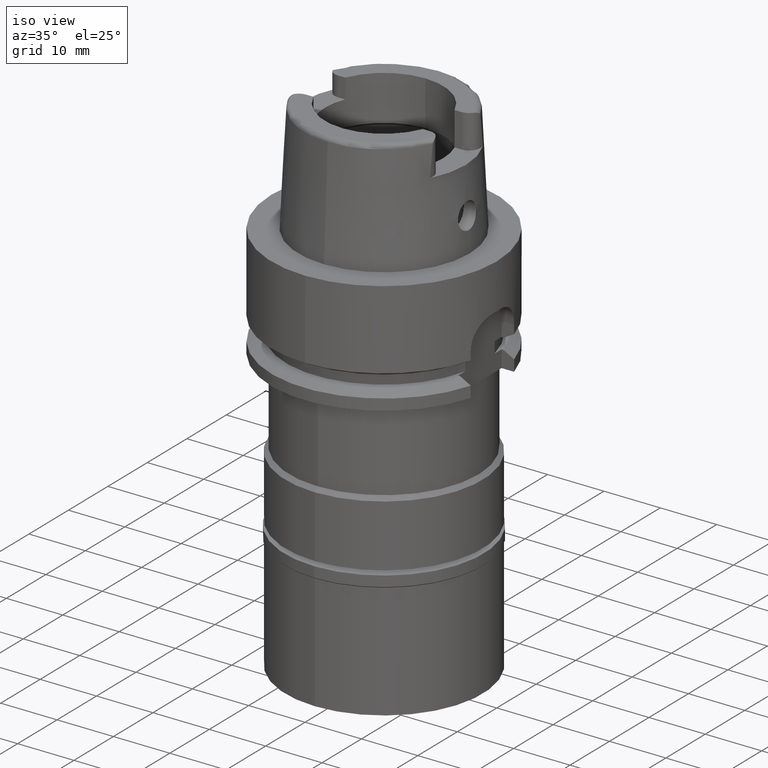
[diagram: clean part render]
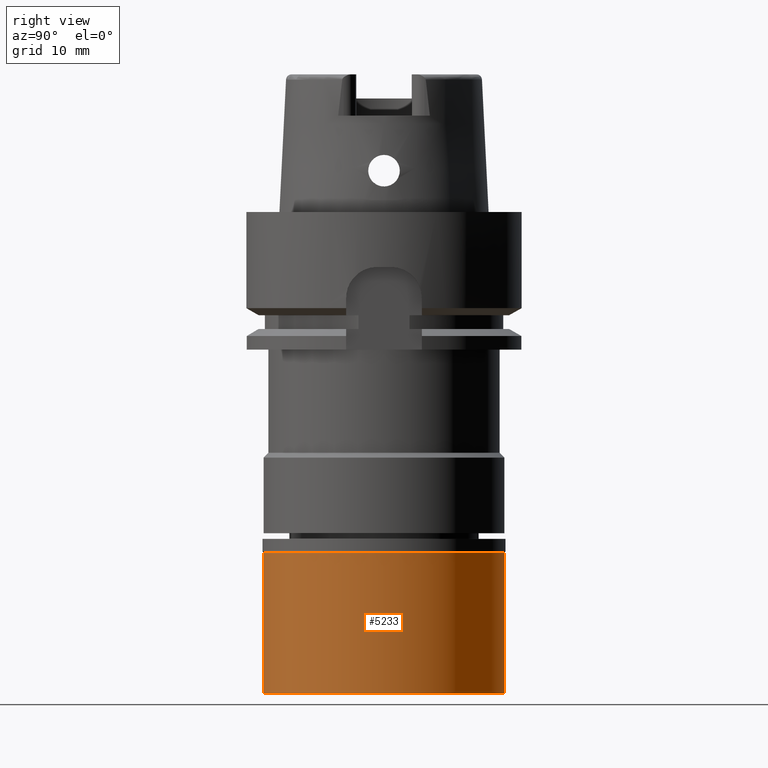
[diagram: tour spotlight — one face highlighted and labeled with its STEP entity id]
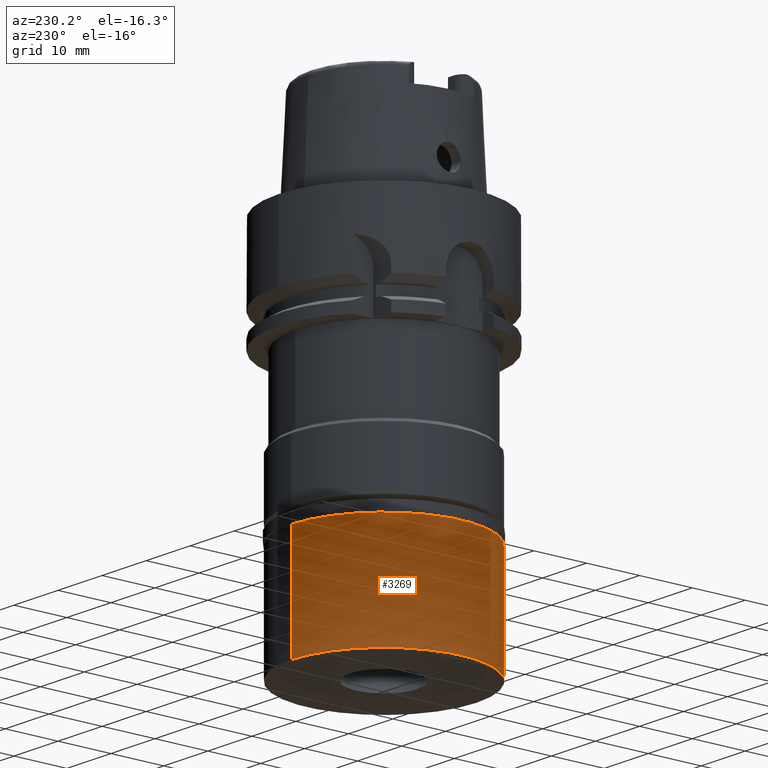
[diagram: tour spotlight — one face highlighted and labeled with its STEP entity id]
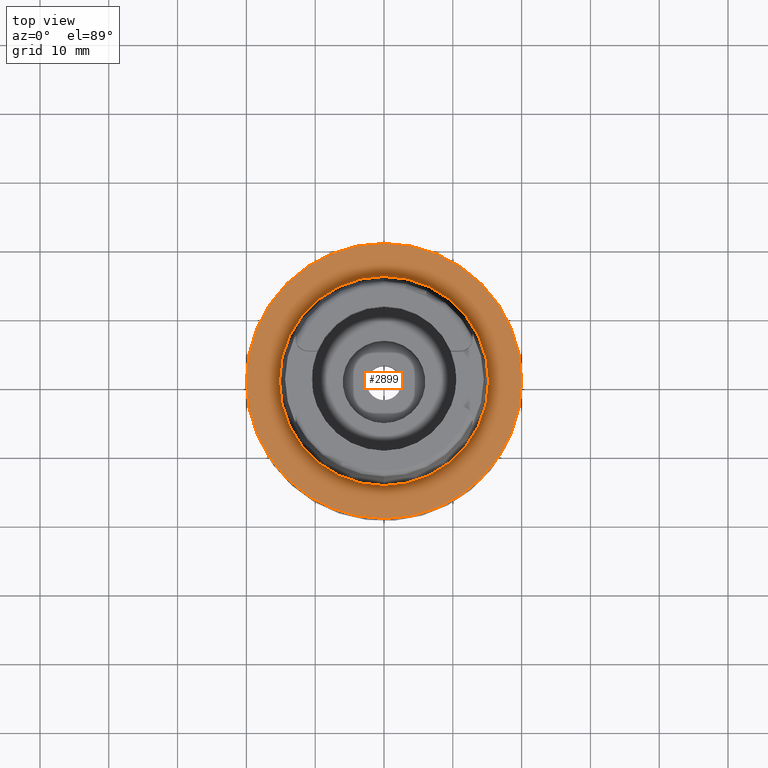
[diagram: tour spotlight — one face highlighted and labeled with its STEP entity id]
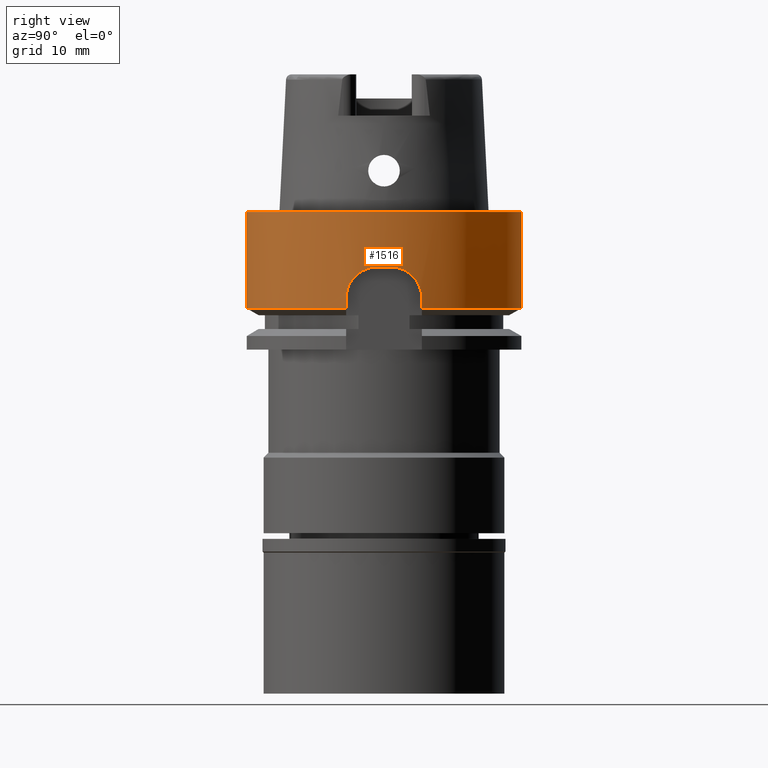
[diagram: tour spotlight — one face highlighted and labeled with its STEP entity id]
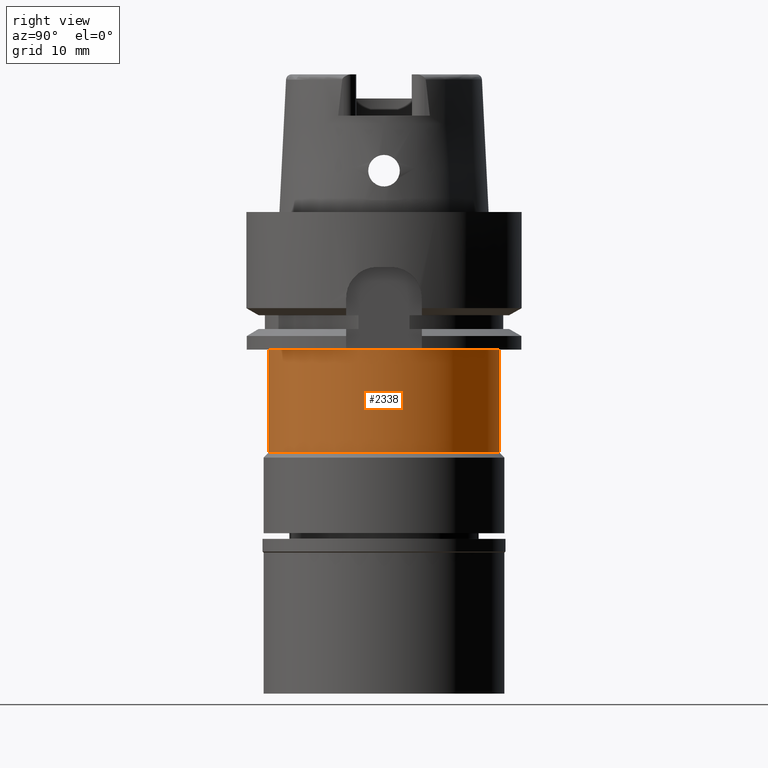
[diagram: tour spotlight — one face highlighted and labeled with its STEP entity id]
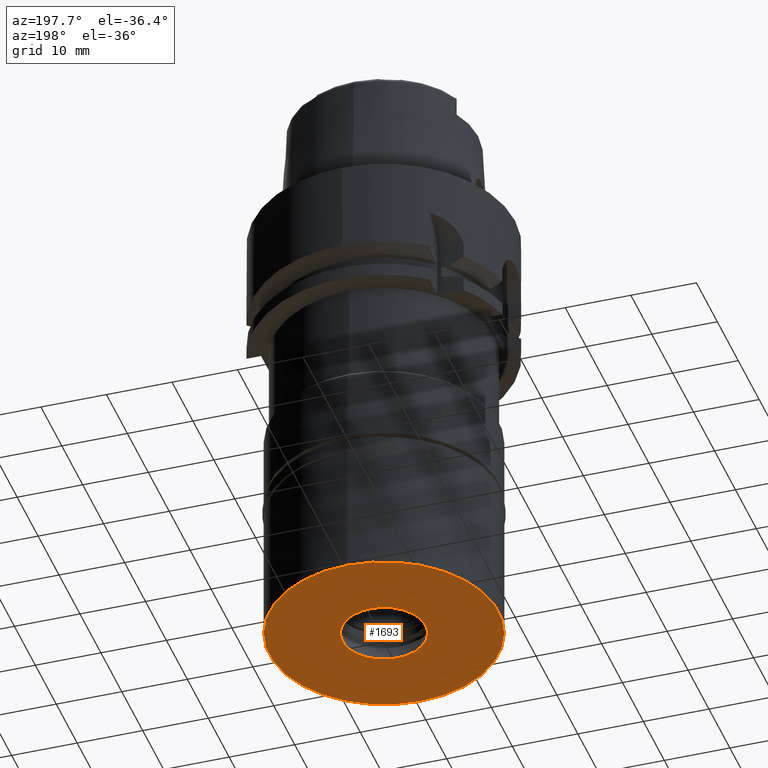
[diagram: tour spotlight — one face highlighted and labeled with its STEP entity id]
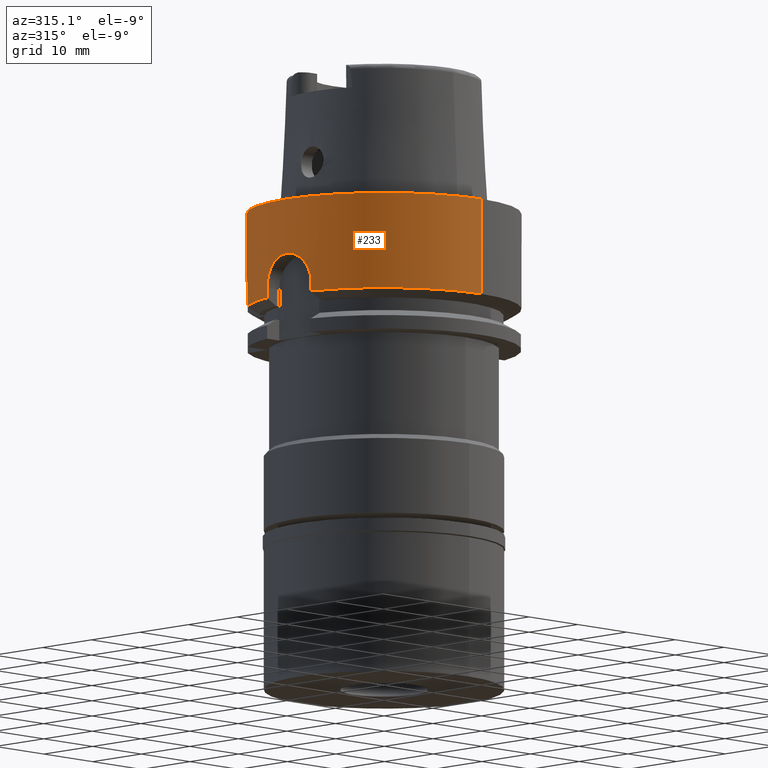
[diagram: tour spotlight — one face highlighted and labeled with its STEP entity id]
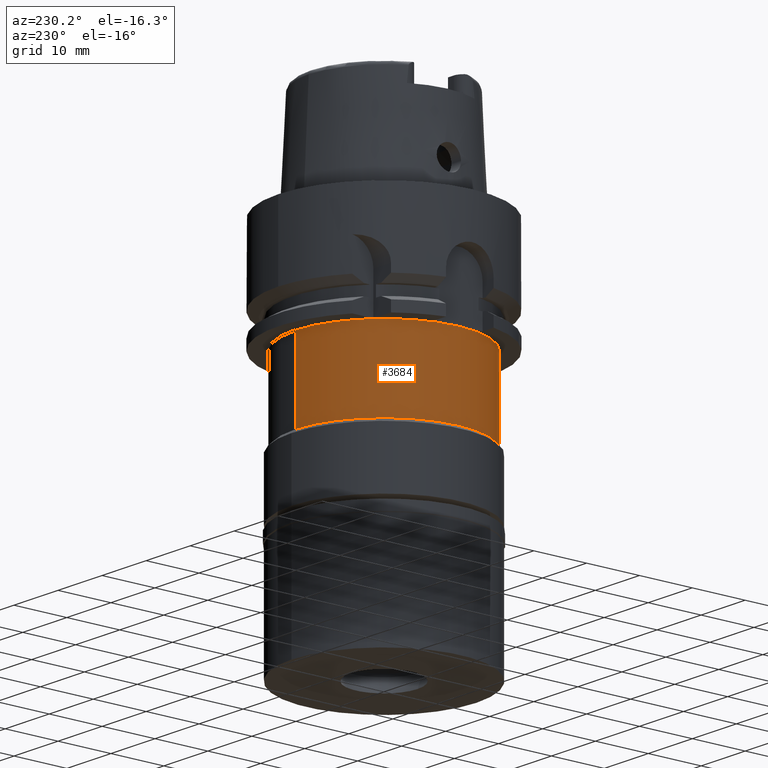
[diagram: tour spotlight — one face highlighted and labeled with its STEP entity id]
A machine part: a face-by-face anatomy tour. The part has 129 B-rep faces; the first image is the clean iso view, then the 8 largest visible faces are spotlighted one at a time (largest first), each with its STEP entity span.

Face 1 — right view, entity #5233. In plain terms, the highlighted cylindrical surface (partial cylindrical patch) has radius 17.5 mm, axis along (0, 0, -1).
Definition (entity closure, byte-faithful):
#129 = VERTEX_POINT ( 'NONE', #948 ) ;
#159 = DIRECTION ( 'NONE',  ( 0.0000000000000000000, 0.0000000000000000000, -1.000000000000000000 ) ) ;
#160 = ORIENTED_EDGE ( 'NONE', *, *, #3111, .F. ) ;
#382 = EDGE_LOOP ( 'NONE', ( #2747, #5348, #1553, #160 ) ) ;
#396 = LINE ( 'NONE', #5217, #630 ) ;
#543 = CIRCLE ( 'NONE', #721, 17.50000000000000000 ) ;
#630 = VECTOR ( 'NONE', #3501, 1000.000000000000000 ) ;
#721 = AXIS2_PLACEMENT_3D ( 'NONE', #5004, #3790, #2504 ) ;
#793 = VERTEX_POINT ( 'NONE', #4098 ) ;
#948 = CARTESIAN_POINT ( 'NONE',  ( 0.0000000000000000000, 17.50000000000000000, -2.000000000000000000 ) ) ;
#1062 = CARTESIAN_POINT ( 'NONE',  ( 0.0000000000000000000, 0.0000000000000000000, -2.000000000000000000 ) ) ;
#1279 = EDGE_CURVE ( 'NONE', #1649, #3152, #2829, .T. ) ;
#1418 = AXIS2_PLACEMENT_3D ( 'NONE', #1062, #5204, #3568 ) ;
#1436 = DIRECTION ( 'NONE',  ( 0.0000000000000000000, -1.000000000000000000, 0.0000000000000000000 ) ) ;
#1444 = CARTESIAN_POINT ( 'NONE',  ( 0.0000000000000000000, -17.50000000000000000, -2.000000000000000000 ) ) ;
#1553 = ORIENTED_EDGE ( 'NONE', *, *, #3092, .T. ) ;
#1649 = VERTEX_POINT ( 'NONE', #1444 ) ;
#2039 = EDGE_CURVE ( 'NONE', #129, #1649, #4844, .T. ) ;
#2386 = DIRECTION ( 'NONE',  ( 0.0000000000000000000, 0.0000000000000000000, -1.000000000000000000 ) ) ;
#2504 = DIRECTION ( 'NONE',  ( 0.0000000000000000000, -1.000000000000000000, 0.0000000000000000000 ) ) ;
#2747 = ORIENTED_EDGE ( 'NONE', *, *, #2039, .T. ) ;
#2829 = LINE ( 'NONE', #3701, #3510 ) ;
#3092 = EDGE_CURVE ( 'NONE', #3152, #793, #543, .T. ) ;
#3111 = EDGE_CURVE ( 'NONE', #129, #793, #396, .T. ) ;
#3152 = VERTEX_POINT ( 'NONE', #4307 ) ;
#3411 = AXIS2_PLACEMENT_3D ( 'NONE', #5125, #159, #1436 ) ;
#3432 = CYLINDRICAL_SURFACE ( 'NONE', #3411, 17.50000000000000000 ) ;
#3501 = DIRECTION ( 'NONE',  ( 0.0000000000000000000, 0.0000000000000000000, -1.000000000000000000 ) ) ;
#3510 = VECTOR ( 'NONE', #2386, 1000.000000000000000 ) ;
#3568 = DIRECTION ( 'NONE',  ( 0.0000000000000000000, 1.000000000000000000, 0.0000000000000000000 ) ) ;
#3701 = CARTESIAN_POINT ( 'NONE',  ( 0.0000000000000000000, -17.50000000000000000, -2.000000000000000000 ) ) ;
#3790 = DIRECTION ( 'NONE',  ( 0.0000000000000000000, 0.0000000000000000000, 1.000000000000000000 ) ) ;
#3826 = FACE_OUTER_BOUND ( 'NONE', #382, .T. ) ;
#4098 = CARTESIAN_POINT ( 'NONE',  ( 0.0000000000000000000, 17.50000000000000000, -22.50000000000000000 ) ) ;
#4307 = CARTESIAN_POINT ( 'NONE',  ( 0.0000000000000000000, -17.50000000000000000, -22.50000000000000000 ) ) ;
#4844 = CIRCLE ( 'NONE', #1418, 17.50000000000000000 ) ;
#5004 = CARTESIAN_POINT ( 'NONE',  ( 0.0000000000000000000, 0.0000000000000000000, -22.50000000000000000 ) ) ;
#5125 = CARTESIAN_POINT ( 'NONE',  ( 0.0000000000000000000, 0.0000000000000000000, 0.0000000000000000000 ) ) ;
#5204 = DIRECTION ( 'NONE',  ( 0.0000000000000000000, 0.0000000000000000000, -1.000000000000000000 ) ) ;
#5217 = CARTESIAN_POINT ( 'NONE',  ( 0.0000000000000000000, 17.50000000000000000, -2.000000000000000000 ) ) ;
#5233 = ADVANCED_FACE ( 'NONE', ( #3826 ), #3432, .T. ) ;
#5348 = ORIENTED_EDGE ( 'NONE', *, *, #1279, .T. ) ;

Face 2 — auxiliary view, entity #3269. In plain terms, the highlighted cylindrical surface (partial cylindrical patch) has radius 17.5 mm, axis along (0, 0, -1).
Definition (entity closure, byte-faithful):
#129 = VERTEX_POINT ( 'NONE', #948 ) ;
#366 = AXIS2_PLACEMENT_3D ( 'NONE', #1891, #3922, #3042 ) ;
#396 = LINE ( 'NONE', #5217, #630 ) ;
#472 = ORIENTED_EDGE ( 'NONE', *, *, #1349, .T. ) ;
#630 = VECTOR ( 'NONE', #3501, 1000.000000000000000 ) ;
#763 = ORIENTED_EDGE ( 'NONE', *, *, #2149, .T. ) ;
#793 = VERTEX_POINT ( 'NONE', #4098 ) ;
#877 = ORIENTED_EDGE ( 'NONE', *, *, #1279, .F. ) ;
#908 = CARTESIAN_POINT ( 'NONE',  ( 0.0000000000000000000, 0.0000000000000000000, -22.50000000000000000 ) ) ;
#948 = CARTESIAN_POINT ( 'NONE',  ( 0.0000000000000000000, 17.50000000000000000, -2.000000000000000000 ) ) ;
#1176 = CARTESIAN_POINT ( 'NONE',  ( 0.0000000000000000000, 0.0000000000000000000, -2.000000000000000000 ) ) ;
#1279 = EDGE_CURVE ( 'NONE', #1649, #3152, #2829, .T. ) ;
#1349 = EDGE_CURVE ( 'NONE', #793, #3152, #2819, .T. ) ;
#1360 = CYLINDRICAL_SURFACE ( 'NONE', #366, 17.50000000000000000 ) ;
#1444 = CARTESIAN_POINT ( 'NONE',  ( 0.0000000000000000000, -17.50000000000000000, -2.000000000000000000 ) ) ;
#1649 = VERTEX_POINT ( 'NONE', #1444 ) ;
#1891 = CARTESIAN_POINT ( 'NONE',  ( 0.0000000000000000000, 0.0000000000000000000, 0.0000000000000000000 ) ) ;
#1986 = DIRECTION ( 'NONE',  ( 0.0000000000000000000, -1.000000000000000000, 0.0000000000000000000 ) ) ;
#2149 = EDGE_CURVE ( 'NONE', #1649, #129, #5374, .T. ) ;
#2377 = AXIS2_PLACEMENT_3D ( 'NONE', #908, #5408, #2498 ) ;
#2386 = DIRECTION ( 'NONE',  ( 0.0000000000000000000, 0.0000000000000000000, -1.000000000000000000 ) ) ;
#2438 = ORIENTED_EDGE ( 'NONE', *, *, #3111, .T. ) ;
#2498 = DIRECTION ( 'NONE',  ( 0.0000000000000000000, 1.000000000000000000, 0.0000000000000000000 ) ) ;
#2819 = CIRCLE ( 'NONE', #2377, 17.50000000000000000 ) ;
#2829 = LINE ( 'NONE', #3701, #3510 ) ;
#3042 = DIRECTION ( 'NONE',  ( 0.0000000000000000000, -1.000000000000000000, 0.0000000000000000000 ) ) ;
#3111 = EDGE_CURVE ( 'NONE', #129, #793, #396, .T. ) ;
#3152 = VERTEX_POINT ( 'NONE', #4307 ) ;
#3269 = ADVANCED_FACE ( 'NONE', ( #4752 ), #1360, .T. ) ;
#3501 = DIRECTION ( 'NONE',  ( 0.0000000000000000000, 0.0000000000000000000, -1.000000000000000000 ) ) ;
#3510 = VECTOR ( 'NONE', #2386, 1000.000000000000000 ) ;
#3519 = AXIS2_PLACEMENT_3D ( 'NONE', #1176, #4479, #1986 ) ;
#3701 = CARTESIAN_POINT ( 'NONE',  ( 0.0000000000000000000, -17.50000000000000000, -2.000000000000000000 ) ) ;
#3922 = DIRECTION ( 'NONE',  ( 0.0000000000000000000, 0.0000000000000000000, -1.000000000000000000 ) ) ;
#4098 = CARTESIAN_POINT ( 'NONE',  ( 0.0000000000000000000, 17.50000000000000000, -22.50000000000000000 ) ) ;
#4307 = CARTESIAN_POINT ( 'NONE',  ( 0.0000000000000000000, -17.50000000000000000, -22.50000000000000000 ) ) ;
#4479 = DIRECTION ( 'NONE',  ( 0.0000000000000000000, 0.0000000000000000000, -1.000000000000000000 ) ) ;
#4752 = FACE_OUTER_BOUND ( 'NONE', #4843, .T. ) ;
#4843 = EDGE_LOOP ( 'NONE', ( #472, #877, #763, #2438 ) ) ;
#5217 = CARTESIAN_POINT ( 'NONE',  ( 0.0000000000000000000, 17.50000000000000000, -2.000000000000000000 ) ) ;
#5374 = CIRCLE ( 'NONE', #3519, 17.50000000000000000 ) ;
#5408 = DIRECTION ( 'NONE',  ( 0.0000000000000000000, 0.0000000000000000000, 1.000000000000000000 ) ) ;

Face 3 — top view, entity #2899. In plain terms, the highlighted planar face has unit normal (0, 0, -1).
Definition (entity closure, byte-faithful):
#43 = DIRECTION ( 'NONE',  ( 0.0000000000000000000, 1.000000000000000000, 0.0000000000000000000 ) ) ;
#446 = EDGE_CURVE ( 'NONE', #3135, #3736, #1845, .T. ) ;
#688 = CIRCLE ( 'NONE', #2456, 15.20000663301000010 ) ;
#690 = ORIENTED_EDGE ( 'NONE', *, *, #3662, .F. ) ;
#692 = DIRECTION ( 'NONE',  ( 0.0000000000000000000, 0.0000000000000000000, 1.000000000000000000 ) ) ;
#1219 = AXIS2_PLACEMENT_3D ( 'NONE', #4092, #3368, #5035 ) ;
#1332 = CIRCLE ( 'NONE', #4400, 20.00000000000000000 ) ;
#1726 = DIRECTION ( 'NONE',  ( 0.0000000000000000000, 0.0000000000000000000, -1.000000000000000000 ) ) ;
#1845 = CIRCLE ( 'NONE', #1219, 20.00000000000000000 ) ;
#1866 = AXIS2_PLACEMENT_3D ( 'NONE', #3793, #4310, #43 ) ;
#1895 = ORIENTED_EDGE ( 'NONE', *, *, #2634, .F. ) ;
#1922 = CARTESIAN_POINT ( 'NONE',  ( 0.0000000000000000000, -15.20000663301000010, 1.527666881883999820E-13 ) ) ;
#2089 = CARTESIAN_POINT ( 'NONE',  ( 0.0000000000000000000, 1.520582698161000137E-14, 3.197442310919999608E-14 ) ) ;
#2269 = EDGE_CURVE ( 'NONE', #5148, #2486, #3969, .T. ) ;
#2456 = AXIS2_PLACEMENT_3D ( 'NONE', #2735, #692, #4079 ) ;
#2486 = VERTEX_POINT ( 'NONE', #1922 ) ;
#2487 = CARTESIAN_POINT ( 'NONE',  ( 0.0000000000000000000, 15.20000663301000010, 5.684341886080998387E-14 ) ) ;
#2609 = FACE_BOUND ( 'NONE', #3810, .T. ) ;
#2634 = EDGE_CURVE ( 'NONE', #3736, #3135, #1332, .T. ) ;
#2735 = CARTESIAN_POINT ( 'NONE',  ( 0.0000000000000000000, 1.342457523729000028E-14, 5.684341886080998387E-14 ) ) ;
#2899 = ADVANCED_FACE ( 'NONE', ( #4178, #2609 ), #5423, .F. ) ;
#2934 = DIRECTION ( 'NONE',  ( 0.0000000000000000000, 0.0000000000000000000, -1.000000000000000000 ) ) ;
#3135 = VERTEX_POINT ( 'NONE', #4278 ) ;
#3311 = ORIENTED_EDGE ( 'NONE', *, *, #446, .F. ) ;
#3345 = DIRECTION ( 'NONE',  ( 0.0000000000000000000, -1.000000000000000000, 0.0000000000000000000 ) ) ;
#3368 = DIRECTION ( 'NONE',  ( 0.0000000000000000000, 0.0000000000000000000, -1.000000000000000000 ) ) ;
#3576 = CARTESIAN_POINT ( 'NONE',  ( 0.0000000000000000000, -20.00000000000000000, 3.197442310919999608E-14 ) ) ;
#3662 = EDGE_CURVE ( 'NONE', #2486, #5148, #688, .T. ) ;
#3736 = VERTEX_POINT ( 'NONE', #3576 ) ;
#3793 = CARTESIAN_POINT ( 'NONE',  ( 0.0000000000000000000, 1.342457523729000028E-14, 5.684341886080998387E-14 ) ) ;
#3810 = EDGE_LOOP ( 'NONE', ( #5200, #690 ) ) ;
#3842 = CARTESIAN_POINT ( 'NONE',  ( 0.0000000000000000000, 1.224646799146999965E-14, 0.0000000000000000000 ) ) ;
#3969 = CIRCLE ( 'NONE', #1866, 15.20000663301000010 ) ;
#4079 = DIRECTION ( 'NONE',  ( 0.0000000000000000000, -1.000000000000000000, 0.0000000000000000000 ) ) ;
#4092 = CARTESIAN_POINT ( 'NONE',  ( 0.0000000000000000000, 1.520582698161000137E-14, 3.197442310919999608E-14 ) ) ;
#4178 = FACE_OUTER_BOUND ( 'NONE', #5335, .T. ) ;
#4278 = CARTESIAN_POINT ( 'NONE',  ( 0.0000000000000000000, 20.00000000000000000, 2.131628207279999844E-14 ) ) ;
#4310 = DIRECTION ( 'NONE',  ( 0.0000000000000000000, 0.0000000000000000000, 1.000000000000000000 ) ) ;
#4400 = AXIS2_PLACEMENT_3D ( 'NONE', #2089, #2934, #3345 ) ;
#4502 = AXIS2_PLACEMENT_3D ( 'NONE', #3842, #1726, #4688 ) ;
#4688 = DIRECTION ( 'NONE',  ( 0.0000000000000000000, -1.000000000000000000, 0.0000000000000000000 ) ) ;
#5035 = DIRECTION ( 'NONE',  ( 0.0000000000000000000, 1.000000000000000000, 0.0000000000000000000 ) ) ;
#5148 = VERTEX_POINT ( 'NONE', #2487 ) ;
#5200 = ORIENTED_EDGE ( 'NONE', *, *, #2269, .F. ) ;
#5335 = EDGE_LOOP ( 'NONE', ( #3311, #1895 ) ) ;
#5423 = PLANE ( 'NONE',  #4502 ) ;

Face 4 — right view, entity #1516. In plain terms, the highlighted cylindrical surface (partial cylindrical patch) has radius 20 mm, axis along (0, 0, -1).
Definition (entity closure, byte-faithful):
#10 = CARTESIAN_POINT ( 'NONE',  ( 19.77827469356541457, 2.972166186035679392, -8.453964676544920565 ) ) ;
#30 = CARTESIAN_POINT ( 'NONE',  ( 19.59903277049881609, 3.985266028508629876, -9.129531640288334415 ) ) ;
#93 = VECTOR ( 'NONE', #4353, 1000.000000000000227 ) ;
#113 = CARTESIAN_POINT ( 'NONE',  ( 0.0000000000000000000, -20.00000000000000000, -13.97927405783999966 ) ) ;
#119 = LINE ( 'NONE', #196, #93 ) ;
#131 = CARTESIAN_POINT ( 'NONE',  ( 19.86146913379044321, -2.348870910571402515, -8.206248310993188966 ) ) ;
#137 = CARTESIAN_POINT ( 'NONE',  ( 0.0000000000000000000, 1.047199923064999921E-14, -13.97927405783999966 ) ) ;
#157 = CARTESIAN_POINT ( 'NONE',  ( 19.90130048979590427, -1.985477844315023166, -8.106792410127679815 ) ) ;
#176 = AXIS2_PLACEMENT_3D ( 'NONE', #992, #2682, #2659 ) ;
#186 = CARTESIAN_POINT ( 'NONE',  ( 19.56252047788029103, -4.160306109554638532, -9.296470942880430854 ) ) ;
#196 = CARTESIAN_POINT ( 'NONE',  ( 19.22888455238999939, 5.499999897342000565, -13.97927491811000067 ) ) ;
#208 = CARTESIAN_POINT ( 'NONE',  ( 19.67792965753530865, -3.575210498469692855, -8.806737363575381394 ) ) ;
#325 = EDGE_LOOP ( 'NONE', ( #640, #2922, #4747, #4048, #5045, #2501, #3161, #920, #1799, #910 ) ) ;
#384 = CARTESIAN_POINT ( 'NONE',  ( 19.94751913937711052, 1.548617260977979360, -7.999999999999998224 ) ) ;
#439 = CARTESIAN_POINT ( 'NONE',  ( 19.29610016922762483, 5.260308973706413482, -11.04749097635307109 ) ) ;
#446 = EDGE_CURVE ( 'NONE', #3135, #3736, #1845, .T. ) ;
#471 = EDGE_CURVE ( 'NONE', #4430, #2279, #4820, .T. ) ;
#545 = CARTESIAN_POINT ( 'NONE',  ( 19.69332107127798182, -3.489009252828781715, -8.751020824292881528 ) ) ;
#568 = CARTESIAN_POINT ( 'NONE',  ( 19.79878730079989069, -2.832227115090881320, -8.387867483001505420 ) ) ;
#596 = CARTESIAN_POINT ( 'NONE',  ( 19.74957711522537096, -3.155380211596758855, -8.549072167343062745 ) ) ;
#623 = CARTESIAN_POINT ( 'NONE',  ( 19.39600761098211734, -4.882168379421429449, -10.21950968928042514 ) ) ;
#640 = ORIENTED_EDGE ( 'NONE', *, *, #471, .T. ) ;
#650 = CARTESIAN_POINT ( 'NONE',  ( 19.50217906037645221, -4.442594655556905359, -9.578652356965383419 ) ) ;
#659 = CARTESIAN_POINT ( 'NONE',  ( 19.22888452303001117, 5.500000000000000000, -12.22452543198930286 ) ) ;
#769 = CARTESIAN_POINT ( 'NONE',  ( 19.80744038394356465, 2.768531926860419379, -8.361899297416572452 ) ) ;
#825 = CARTESIAN_POINT ( 'NONE',  ( 19.89335576417699514, 2.144327266528192943, -8.101629736495413070 ) ) ;
#878 = CARTESIAN_POINT ( 'NONE',  ( 19.32104432762976032, 5.167285538176800586, -10.80184115673282008 ) ) ;
#901 = CARTESIAN_POINT ( 'NONE',  ( 0.0000000000000000000, -20.00000000000000000, 2.131628207279999844E-14 ) ) ;
#910 = ORIENTED_EDGE ( 'NONE', *, *, #2649, .F. ) ;
#920 = ORIENTED_EDGE ( 'NONE', *, *, #3937, .T. ) ;
#927 = DIRECTION ( 'NONE',  ( 0.0000000000000000000, -1.000000000000000000, 0.0000000000000000000 ) ) ;
#984 = CARTESIAN_POINT ( 'NONE',  ( 19.69735007035627206, -3.466207568198697686, -8.735958413005551648 ) ) ;
#992 = CARTESIAN_POINT ( 'NONE',  ( 0.0000000000000000000, 1.520582698161000137E-14, 24.16499999999999915 ) ) ;
#1000 = VERTEX_POINT ( 'NONE', #2637 ) ;
#1005 = CARTESIAN_POINT ( 'NONE',  ( 19.56709556094940083, -4.138720174378709871, -9.275259194945782326 ) ) ;
#1031 = CARTESIAN_POINT ( 'NONE',  ( 19.64440581769492056, -3.753017091486741563, -8.939610780091376441 ) ) ;
#1060 = CARTESIAN_POINT ( 'NONE',  ( 19.83212263906063910, -2.585548439234274465, -8.288267333565622508 ) ) ;
#1080 = LINE ( 'NONE', #1555, #5017 ) ;
#1088 = CARTESIAN_POINT ( 'NONE',  ( 19.78036263143154017, -2.958436038893097919, -8.445803820337598466 ) ) ;
#1094 = DIRECTION ( 'NONE',  ( 0.9614442261514726251, 0.2749999999999924727, 0.0000000000000000000 ) ) ;
#1104 = VERTEX_POINT ( 'NONE', #1389 ) ;
#1119 = CARTESIAN_POINT ( 'NONE',  ( 0.0000000000000000000, 1.047199923064999921E-14, -13.97927405783999966 ) ) ;
#1157 = EDGE_CURVE ( 'NONE', #3135, #1104, #1080, .T. ) ;
#1159 = CARTESIAN_POINT ( 'NONE',  ( 19.26935846052533563, 5.358219424010476573, -11.36942809222936113 ) ) ;
#1182 = CARTESIAN_POINT ( 'NONE',  ( 19.71061695536669234, 3.394883019990818429, -8.687386290954849599 ) ) ;
#1219 = AXIS2_PLACEMENT_3D ( 'NONE', #4092, #3368, #5035 ) ;
#1243 = CARTESIAN_POINT ( 'NONE',  ( 19.34392774223938360, 5.081398271258969146, -10.59154111407564791 ) ) ;
#1252 = CARTESIAN_POINT ( 'NONE',  ( 19.97498435543999662, -1.000000000000000000, -8.000000000000000000 ) ) ;
#1295 = CARTESIAN_POINT ( 'NONE',  ( 19.79308022629898289, 2.869919325952479561, -8.406735276177657923 ) ) ;
#1389 = CARTESIAN_POINT ( 'NONE',  ( 0.0000000000000000000, 20.00000000000000000, -13.97927405783999966 ) ) ;
#1400 = CARTESIAN_POINT ( 'NONE',  ( 19.84841866433619373, -2.458145572848192018, -8.241564943247356112 ) ) ;
#1433 = CARTESIAN_POINT ( 'NONE',  ( 19.96138875464932738, -1.271571913020071554, -8.000000000000003553 ) ) ;
#1458 = CARTESIAN_POINT ( 'NONE',  ( 19.33325722711106209, -5.121510815745915046, -10.69317572620311019 ) ) ;
#1482 = CARTESIAN_POINT ( 'NONE',  ( 19.32540896272659836, -5.150933915506586303, -10.76223295654294354 ) ) ;
#1516 = ADVANCED_FACE ( 'NONE', ( #1806 ), #2628, .T. ) ;
#1521 = EDGE_CURVE ( 'NONE', #3626, #1906, #119, .T. ) ;
#1555 = CARTESIAN_POINT ( 'NONE',  ( 0.0000000000000000000, 20.00000000000000000, 2.131628207279999844E-14 ) ) ;
#1628 = CARTESIAN_POINT ( 'NONE',  ( 19.57669243206812837, 4.094476975646871075, -9.229513419689542530 ) ) ;
#1638 = LINE ( 'NONE', #3310, #2052 ) ;
#1690 = CARTESIAN_POINT ( 'NONE',  ( 19.80285723666304065, 2.801244792769177927, -8.376053882337826550 ) ) ;
#1799 = ORIENTED_EDGE ( 'NONE', *, *, #2569, .F. ) ;
#1806 = FACE_OUTER_BOUND ( 'NONE', #325, .T. ) ;
#1819 = CARTESIAN_POINT ( 'NONE',  ( 19.70267184871861943, -3.435874800770895465, -8.716184561162778621 ) ) ;
#1845 = CIRCLE ( 'NONE', #1219, 20.00000000000000000 ) ;
#1847 = CARTESIAN_POINT ( 'NONE',  ( 19.55921014826531135, -4.175848118541467535, -9.311895862121124523 ) ) ;
#1854 = AXIS2_PLACEMENT_3D ( 'NONE', #1119, #5293, #1094 ) ;
#1877 = CARTESIAN_POINT ( 'NONE',  ( 19.37849366734413792, -4.950199303942151019, -10.34065976104214002 ) ) ;
#1899 = CARTESIAN_POINT ( 'NONE',  ( 19.60625021335636475, -3.948171063089289223, -9.099825008703520623 ) ) ;
#1906 = VERTEX_POINT ( 'NONE', #4696 ) ;
#2028 = CARTESIAN_POINT ( 'NONE',  ( 19.50178303910739785, 4.437984910554459539, -9.595210715108155597 ) ) ;
#2052 = VECTOR ( 'NONE', #2415, 1000.000000000000114 ) ;
#2062 = DIRECTION ( 'NONE',  ( 0.0000000000000000000, -4.549132851063000272E-14, -1.000000000000000000 ) ) ;
#2236 = CARTESIAN_POINT ( 'NONE',  ( 19.22888452303000406, -5.500000000000000888, -11.94492904260544819 ) ) ;
#2258 = CARTESIAN_POINT ( 'NONE',  ( 19.34811621286930006, -5.065741419844226101, -10.57039266656148691 ) ) ;
#2279 = VERTEX_POINT ( 'NONE', #3019 ) ;
#2313 = CARTESIAN_POINT ( 'NONE',  ( 19.69466765814280507, -3.481403847532472451, -8.745977827734240151 ) ) ;
#2336 = CARTESIAN_POINT ( 'NONE',  ( 19.32361500977888014, -5.157669752052180812, -10.77843254344504231 ) ) ;
#2346 = CARTESIAN_POINT ( 'NONE',  ( 19.23659384445769049, 5.474636522603661071, -11.94125941517175882 ) ) ;
#2415 = DIRECTION ( 'NONE',  ( -9.329837388163392138E-08, -3.261840375514141139E-07, -0.9999999999999423794 ) ) ;
#2453 = B_SPLINE_CURVE_WITH_KNOTS ( 'NONE', 3,
 ( #1252, #1433, #4342, #157, #3132, #131, #1400, #1060, #4865, #3932, #4760, #2725, #568, #1088, #596, #5229, #4784, #3482, #1819, #984, #2313, #545, #4417, #4810, #4366, #5256, #208, #1031, #5175, #1899, #5203, #3986, #3106, #1005, #186, #3905, #1847, #4391, #650, #3542, #623, #1877, #3567, #2258, #3081, #1458, #2752, #1482, #2778, #2336, #4840, #3157, #2236, #2697 ),
 .UNSPECIFIED., .F., .F.,
 ( 4, 2, 2, 1, 1, 1, 2, 2, 2, 2, 1, 1, 1, 1, 1, 2, 2, 2, 2, 2, 1, 1, 1, 2, 2, 2, 2, 2, 1, 1, 1, 2, 2, 4 ),
 ( 0.0000000000000000000, 0.1250000000004546918, 0.1875000000006820378, 0.2187500000007956136, 0.2343750000008523182, 0.2421875000008807399, 0.2460937500008948398, 0.2500000000009089396, 0.3125000000011331491, 0.3437500000012453927, 0.3593750000013016810, 0.3671875000013298251, 0.3710937500013435364, 0.3730468750013505308, 0.3740234375013539725, 0.3745117187513555823, 0.3750000000013571921, 0.4375000000012203571, 0.4687500000011521339, 0.4843750000011182166, 0.4921875000011012302, 0.4960937500010925705, 0.4980468750010882406, 0.4990234375010861312, 0.5000000000010840218, 0.6250000000008190115, 0.6875000000006868950, 0.7187500000006212808, 0.7343750000005885292, 0.7421875000005720979, 0.7460937500005634382, 0.7480468750005591083, 0.7500000000005547784, 1.000000000000000000 ),
 .UNSPECIFIED. ) ;
#2501 = ORIENTED_EDGE ( 'NONE', *, *, #446, .T. ) ;
#2514 = CARTESIAN_POINT ( 'NONE',  ( 19.55092273202954800, 4.214495000985534645, -9.350849250980044047 ) ) ;
#2569 = EDGE_CURVE ( 'NONE', #4835, #1000, #1638, .T. ) ;
#2570 = CARTESIAN_POINT ( 'NONE',  ( 19.53068917781587643, 4.307772580736547674, -9.448423039916075794 ) ) ;
#2628 = CYLINDRICAL_SURFACE ( 'NONE', #176, 20.00000000000000000 ) ;
#2637 = CARTESIAN_POINT ( 'NONE',  ( 19.22888452303000051, -5.499999999998999911, -13.97927405783999966 ) ) ;
#2649 = EDGE_CURVE ( 'NONE', #4430, #4835, #2453, .T. ) ;
#2659 = DIRECTION ( 'NONE',  ( 0.0000000000000000000, -1.000000000000000000, 0.0000000000000000000 ) ) ;
#2682 = DIRECTION ( 'NONE',  ( 0.0000000000000000000, 0.0000000000000000000, -1.000000000000000000 ) ) ;
#2697 = CARTESIAN_POINT ( 'NONE',  ( 19.22888452303000051, -5.500000000000000000, -12.50000000000000000 ) ) ;
#2725 = CARTESIAN_POINT ( 'NONE',  ( 19.81613331589492688, -2.705294117998975345, -8.335622835695419397 ) ) ;
#2752 = CARTESIAN_POINT ( 'NONE',  ( 19.32796853517834990, -5.141331757604538311, -10.73939656596044223 ) ) ;
#2778 = CARTESIAN_POINT ( 'NONE',  ( 19.32433016885754995, -5.154984032051013187, -10.77196065785530621 ) ) ;
#2847 = CARTESIAN_POINT ( 'NONE',  ( 19.28670443373762922, 5.294861695521306366, -11.15473780884191868 ) ) ;
#2922 = ORIENTED_EDGE ( 'NONE', *, *, #3737, .F. ) ;
#2925 = CARTESIAN_POINT ( 'NONE',  ( 19.31475612479188442, 5.190847870707219869, -10.86066141085612990 ) ) ;
#2949 = CARTESIAN_POINT ( 'NONE',  ( 19.76304910926945624, 3.072040407568542797, -8.504729945719715190 ) ) ;
#2976 = CARTESIAN_POINT ( 'NONE',  ( 19.52092648650097217, 4.352013357730273313, -9.497352550114571912 ) ) ;
#3019 = CARTESIAN_POINT ( 'NONE',  ( 19.97498435543999662, 1.000000000000000000, -8.000000000000000000 ) ) ;
#3081 = CARTESIAN_POINT ( 'NONE',  ( 19.33808104367489022, -5.103433063480284915, -10.65263795315835083 ) ) ;
#3106 = CARTESIAN_POINT ( 'NONE',  ( 19.57603615629277627, -4.096178509312493610, -9.234172121817874057 ) ) ;
#3132 = CARTESIAN_POINT ( 'NONE',  ( 19.88634666975159959, -2.130603880447141663, -8.141702159505836534 ) ) ;
#3135 = VERTEX_POINT ( 'NONE', #4278 ) ;
#3157 = CARTESIAN_POINT ( 'NONE',  ( 19.26022498400375582, -5.395878705449907109, -11.35624237206203624 ) ) ;
#3161 = ORIENTED_EDGE ( 'NONE', *, *, #3982, .T. ) ;
#3169 = CARTESIAN_POINT ( 'NONE',  ( 19.22888455238999939, 5.499999897342000565, -13.97927491811000067 ) ) ;
#3248 = CARTESIAN_POINT ( 'NONE',  ( 19.22888452303000051, 5.500000000000000000, -12.50000000000000000 ) ) ;
#3276 = CARTESIAN_POINT ( 'NONE',  ( 19.31804990225732865, 5.178514594694311413, -10.82961816771740793 ) ) ;
#3310 = CARTESIAN_POINT ( 'NONE',  ( 19.22888452303000051, -5.500000000000000000, -12.50000000000000000 ) ) ;
#3359 = CARTESIAN_POINT ( 'NONE',  ( 19.64372920628904851, 3.757532817544926740, -8.940803042124828792 ) ) ;
#3368 = DIRECTION ( 'NONE',  ( 0.0000000000000000000, 0.0000000000000000000, -1.000000000000000000 ) ) ;
#3412 = AXIS2_PLACEMENT_3D ( 'NONE', #3870, #4687, #4252 ) ;
#3482 = CARTESIAN_POINT ( 'NONE',  ( 19.71314322118491802, -3.375461581503779396, -8.677686041055221011 ) ) ;
#3542 = CARTESIAN_POINT ( 'NONE',  ( 19.45475001896419798, -4.645027512858888485, -9.844582148820315126 ) ) ;
#3567 = CARTESIAN_POINT ( 'NONE',  ( 19.35532304042124352, -5.038565840616842983, -10.51400096850106891 ) ) ;
#3576 = CARTESIAN_POINT ( 'NONE',  ( 0.0000000000000000000, -20.00000000000000000, 3.197442310919999608E-14 ) ) ;
#3626 = VERTEX_POINT ( 'NONE', #3169 ) ;
#3691 = CARTESIAN_POINT ( 'NONE',  ( 19.66628160557844041, 3.637934761274718376, -8.851330630339623085 ) ) ;
#3736 = VERTEX_POINT ( 'NONE', #3576 ) ;
#3737 = EDGE_CURVE ( 'NONE', #1906, #2279, #4940, .T. ) ;
#3774 = CARTESIAN_POINT ( 'NONE',  ( 19.54241317768164521, 4.253900879327315643, -9.391460221040182077 ) ) ;
#3830 = DIRECTION ( 'NONE',  ( 0.0000000000000000000, 0.0000000000000000000, 1.000000000000000000 ) ) ;
#3870 = CARTESIAN_POINT ( 'NONE',  ( 0.0000000000000000000, 1.520582698161000137E-14, -8.000000000000000000 ) ) ;
#3905 = CARTESIAN_POINT ( 'NONE',  ( 19.56053727397980424, -4.169622719903605557, -9.305706481947121134 ) ) ;
#3932 = CARTESIAN_POINT ( 'NONE',  ( 19.82004296057246862, -2.676438803617816387, -8.323919434736534839 ) ) ;
#3937 = EDGE_CURVE ( 'NONE', #4951, #1000, #4722, .T. ) ;
#3982 = EDGE_CURVE ( 'NONE', #3736, #4951, #4346, .T. ) ;
#3986 = CARTESIAN_POINT ( 'NONE',  ( 19.58334025951025126, -4.060858163275478994, -9.201194439393574953 ) ) ;
#4048 = ORIENTED_EDGE ( 'NONE', *, *, #4151, .T. ) ;
#4092 = CARTESIAN_POINT ( 'NONE',  ( 0.0000000000000000000, 1.520582698161000137E-14, 3.197442310919999608E-14 ) ) ;
#4151 = EDGE_CURVE ( 'NONE', #3626, #1104, #5191, .T. ) ;
#4165 = CARTESIAN_POINT ( 'NONE',  ( 19.73203787192768388, 3.268433542953328885, -8.610739621713827674 ) ) ;
#4242 = CARTESIAN_POINT ( 'NONE',  ( 19.43284795425786271, 4.733462173746900703, -9.983470598116364059 ) ) ;
#4252 = DIRECTION ( 'NONE',  ( 0.9987492177719088371, -0.04999999999999998890, 0.0000000000000000000 ) ) ;
#4278 = CARTESIAN_POINT ( 'NONE',  ( 0.0000000000000000000, 20.00000000000000000, 2.131628207279999844E-14 ) ) ;
#4323 = DIRECTION ( 'NONE',  ( 0.0000000000000000000, 4.523718701056999767E-14, -1.000000000000000000 ) ) ;
#4342 = CARTESIAN_POINT ( 'NONE',  ( 19.94126833813945510, -1.553962042629756013, -8.024635870377066382 ) ) ;
#4346 = LINE ( 'NONE', #901, #4744 ) ;
#4353 = DIRECTION ( 'NONE',  ( -1.984899939321989605E-08, 6.939732024143960014E-08, 0.9999999999999973355 ) ) ;
#4366 = CARTESIAN_POINT ( 'NONE',  ( 19.69198582758709648, -3.496535353585502826, -8.756030016345215827 ) ) ;
#4391 = CARTESIAN_POINT ( 'NONE',  ( 19.55831066661007966, -4.180059734996509846, -9.316098562116515325 ) ) ;
#4411 = CARTESIAN_POINT ( 'NONE',  ( 19.97498435543999662, -1.000000000000000000, -8.000000000000000000 ) ) ;
#4417 = CARTESIAN_POINT ( 'NONE',  ( 19.69274280960206269, -3.492270246695682978, -8.753189259786982035 ) ) ;
#4430 = VERTEX_POINT ( 'NONE', #4411 ) ;
#4457 = CARTESIAN_POINT ( 'NONE',  ( 19.22888452303000051, -5.500000000000000000, -12.50000000000000000 ) ) ;
#4541 = CARTESIAN_POINT ( 'NONE',  ( 19.55296419441648226, 4.205003847196432609, -9.341197098579639757 ) ) ;
#4573 = CARTESIAN_POINT ( 'NONE',  ( 19.30832667117934776, 5.214864524813893176, -10.92283486257711189 ) ) ;
#4596 = CARTESIAN_POINT ( 'NONE',  ( 19.54750936190948352, 4.230323080618807907, -9.367087402075284785 ) ) ;
#4619 = CARTESIAN_POINT ( 'NONE',  ( 19.48952998782667123, 4.491951542659576191, -9.660445852766637032 ) ) ;
#4648 = CARTESIAN_POINT ( 'NONE',  ( 19.31947846059805229, 5.173159134740688003, -10.81632376074325563 ) ) ;
#4687 = DIRECTION ( 'NONE',  ( 0.0000000000000000000, 0.0000000000000000000, 1.000000000000000000 ) ) ;
#4696 = CARTESIAN_POINT ( 'NONE',  ( 19.22888452303000051, 5.500000000000000000, -12.50000000000000000 ) ) ;
#4722 = CIRCLE ( 'NONE', #5259, 20.00000000000000000 ) ;
#4744 = VECTOR ( 'NONE', #4323, 1000.000000000000000 ) ;
#4747 = ORIENTED_EDGE ( 'NONE', *, *, #1521, .F. ) ;
#4760 = CARTESIAN_POINT ( 'NONE',  ( 19.81758751915467087, -2.694603442508092250, -8.331257369123576950 ) ) ;
#4784 = CARTESIAN_POINT ( 'NONE',  ( 19.72182351028446234, -3.324155796183636102, -8.646448939536554690 ) ) ;
#4810 = CARTESIAN_POINT ( 'NONE',  ( 19.69235704559151401, -3.494444581091652680, -8.754636474599204021 ) ) ;
#4820 = CIRCLE ( 'NONE', #3412, 20.00000000000000355 ) ;
#4835 = VERTEX_POINT ( 'NONE', #4457 ) ;
#4840 = CARTESIAN_POINT ( 'NONE',  ( 19.32339560065396711, -5.158493796155513955, -10.78042079026270450 ) ) ;
#4865 = CARTESIAN_POINT ( 'NONE',  ( 19.82370700702813338, -2.649184798639704574, -8.313013169470419683 ) ) ;
#4936 = CARTESIAN_POINT ( 'NONE',  ( 19.25972180874073203, 5.392789425403113235, -11.51281114942237060 ) ) ;
#4940 = B_SPLINE_CURVE_WITH_KNOTS ( 'NONE', 3,
 ( #3248, #659, #2346, #4936, #1159, #2847, #439, #4573, #2925, #3276, #4648, #5022, #878, #1243, #5375, #4242, #5072, #4619, #2028, #2976, #2570, #3774, #4596, #2514, #4541, #1628, #30, #3359, #3691, #1182, #4165, #2949, #10, #1295, #1690, #769, #825, #384, #5046 ),
 .UNSPECIFIED., .F., .F.,
 ( 4, 2, 2, 1, 1, 1, 1, 2, 2, 2, 2, 2, 1, 1, 2, 2, 2, 2, 2, 1, 2, 2, 4 ),
 ( 0.0000000000000000000, 0.1249999999999790445, 0.1874999999999686084, 0.2187499999999634182, 0.2343749999999611977, 0.2421874999999604205, 0.2460937499999599765, 0.2480468749999600597, 0.2499999999999601430, 0.3749999999999700795, 0.4374999999999756306, 0.4687499999999784062, 0.4843749999999794609, 0.4921874999999802380, 0.4960937499999801825, 0.4999999999999801270, 0.5624999999999820144, 0.6249999999999837907, 0.6874999999999856781, 0.7187499999999868994, 0.7343749999999876765, 0.7499999999999884537, 1.000000000000000000 ),
 .UNSPECIFIED. ) ;
#4951 = VERTEX_POINT ( 'NONE', #113 ) ;
#5017 = VECTOR ( 'NONE', #2062, 1000.000000000000000 ) ;
#5022 = CARTESIAN_POINT ( 'NONE',  ( 19.32043459714230238, 5.169573308565364123, -10.80746306775696652 ) ) ;
#5035 = DIRECTION ( 'NONE',  ( 0.0000000000000000000, 1.000000000000000000, 0.0000000000000000000 ) ) ;
#5045 = ORIENTED_EDGE ( 'NONE', *, *, #1157, .F. ) ;
#5046 = CARTESIAN_POINT ( 'NONE',  ( 19.97498435543999662, 1.000000000000000000, -8.000000000000000000 ) ) ;
#5072 = CARTESIAN_POINT ( 'NONE',  ( 19.45429857492942460, 4.644413220633268224, -9.855113310048132291 ) ) ;
#5175 = CARTESIAN_POINT ( 'NONE',  ( 19.63067643663023532, -3.824796506482413871, -8.995412285066208824 ) ) ;
#5191 = CIRCLE ( 'NONE', #1854, 20.00000000000000355 ) ;
#5203 = CARTESIAN_POINT ( 'NONE',  ( 19.59746944698560256, -3.991898400756445309, -9.138091725066988857 ) ) ;
#5229 = CARTESIAN_POINT ( 'NONE',  ( 19.73879052446438465, -3.222291276301134211, -8.586223659250876494 ) ) ;
#5256 = CARTESIAN_POINT ( 'NONE',  ( 19.69005981295732965, -3.507380173997062034, -8.763261857093947782 ) ) ;
#5259 = AXIS2_PLACEMENT_3D ( 'NONE', #137, #3830, #927 ) ;
#5293 = DIRECTION ( 'NONE',  ( 0.0000000000000000000, 0.0000000000000000000, 1.000000000000000000 ) ) ;
#5375 = CARTESIAN_POINT ( 'NONE',  ( 19.37460705602295263, 4.968141796483912742, -10.35745692776728255 ) ) ;

Face 5 — right view, entity #2338. In plain terms, the highlighted cylindrical surface (partial cylindrical patch) has radius 16.8 mm, axis along (0, 0, -1).
Definition (entity closure, byte-faithful):
#134 = CARTESIAN_POINT ( 'NONE',  ( 0.0000000000000000000, 1.520582698161000137E-14, -20.00000000000000000 ) ) ;
#243 = VECTOR ( 'NONE', #741, 1000.000000000000000 ) ;
#267 = VERTEX_POINT ( 'NONE', #4415 ) ;
#334 = CARTESIAN_POINT ( 'NONE',  ( 0.0000000000000000000, 0.0000000000000000000, -35.00000000000000000 ) ) ;
#518 = CIRCLE ( 'NONE', #1403, 16.80000000000000071 ) ;
#520 = ORIENTED_EDGE ( 'NONE', *, *, #533, .F. ) ;
#533 = EDGE_CURVE ( 'NONE', #267, #1798, #887, .T. ) ;
#606 = VECTOR ( 'NONE', #2580, 1000.000000000000000 ) ;
#741 = DIRECTION ( 'NONE',  ( 0.0000000000000000000, 0.0000000000000000000, -1.000000000000000000 ) ) ;
#887 = LINE ( 'NONE', #2172, #606 ) ;
#1020 = CARTESIAN_POINT ( 'NONE',  ( 0.0000000000000000000, -16.80000000000000071, -20.00000000000000000 ) ) ;
#1061 = AXIS2_PLACEMENT_3D ( 'NONE', #1258, #4207, #3451 ) ;
#1158 = AXIS2_PLACEMENT_3D ( 'NONE', #334, #5357, #2742 ) ;
#1188 = ORIENTED_EDGE ( 'NONE', *, *, #3634, .T. ) ;
#1258 = CARTESIAN_POINT ( 'NONE',  ( 0.0000000000000000000, 1.520582698161000137E-14, 24.16499999999999915 ) ) ;
#1403 = AXIS2_PLACEMENT_3D ( 'NONE', #134, #3026, #2618 ) ;
#1650 = ORIENTED_EDGE ( 'NONE', *, *, #5268, .T. ) ;
#1743 = EDGE_LOOP ( 'NONE', ( #1650, #1188, #4185, #520 ) ) ;
#1761 = FACE_OUTER_BOUND ( 'NONE', #1743, .T. ) ;
#1798 = VERTEX_POINT ( 'NONE', #3693 ) ;
#1928 = CARTESIAN_POINT ( 'NONE',  ( 0.0000000000000000000, -16.80000000000000071, -35.00000000000000000 ) ) ;
#2172 = CARTESIAN_POINT ( 'NONE',  ( 0.0000000000000000000, 16.80000000000000071, -20.00000000000000000 ) ) ;
#2338 = ADVANCED_FACE ( 'NONE', ( #1761 ), #2612, .T. ) ;
#2580 = DIRECTION ( 'NONE',  ( 0.0000000000000000000, 0.0000000000000000000, -1.000000000000000000 ) ) ;
#2612 = CYLINDRICAL_SURFACE ( 'NONE', #1061, 16.80000000000000071 ) ;
#2618 = DIRECTION ( 'NONE',  ( 0.0000000000000000000, 1.000000000000000000, 0.0000000000000000000 ) ) ;
#2742 = DIRECTION ( 'NONE',  ( 0.0000000000000000000, -1.000000000000000000, 0.0000000000000000000 ) ) ;
#2846 = VERTEX_POINT ( 'NONE', #1928 ) ;
#3026 = DIRECTION ( 'NONE',  ( 0.0000000000000000000, 0.0000000000000000000, -1.000000000000000000 ) ) ;
#3292 = EDGE_CURVE ( 'NONE', #2846, #1798, #4324, .T. ) ;
#3451 = DIRECTION ( 'NONE',  ( 0.0000000000000000000, -1.000000000000000000, 0.0000000000000000000 ) ) ;
#3606 = LINE ( 'NONE', #4454, #243 ) ;
#3634 = EDGE_CURVE ( 'NONE', #4599, #2846, #3606, .T. ) ;
#3693 = CARTESIAN_POINT ( 'NONE',  ( 0.0000000000000000000, 16.80000000000000071, -35.00000000000000000 ) ) ;
#4185 = ORIENTED_EDGE ( 'NONE', *, *, #3292, .T. ) ;
#4207 = DIRECTION ( 'NONE',  ( 0.0000000000000000000, 0.0000000000000000000, -1.000000000000000000 ) ) ;
#4324 = CIRCLE ( 'NONE', #1158, 16.80000000000000071 ) ;
#4415 = CARTESIAN_POINT ( 'NONE',  ( 0.0000000000000000000, 16.80000000000000071, -20.00000000000000000 ) ) ;
#4454 = CARTESIAN_POINT ( 'NONE',  ( 0.0000000000000000000, -16.80000000000000071, -20.00000000000000000 ) ) ;
#4599 = VERTEX_POINT ( 'NONE', #1020 ) ;
#5268 = EDGE_CURVE ( 'NONE', #267, #4599, #518, .T. ) ;
#5357 = DIRECTION ( 'NONE',  ( 0.0000000000000000000, 0.0000000000000000000, 1.000000000000000000 ) ) ;

Face 6 — auxiliary view, entity #1693. In plain terms, the highlighted planar face has unit normal (0, 0, -1).
Definition (entity closure, byte-faithful):
#1 = EDGE_LOOP ( 'NONE', ( #360, #5397 ) ) ;
#247 = PLANE ( 'NONE',  #4227 ) ;
#360 = ORIENTED_EDGE ( 'NONE', *, *, #1349, .F. ) ;
#395 = DIRECTION ( 'NONE',  ( 0.0000000000000000000, 1.000000000000000000, 0.0000000000000000000 ) ) ;
#530 = ORIENTED_EDGE ( 'NONE', *, *, #550, .F. ) ;
#543 = CIRCLE ( 'NONE', #721, 17.50000000000000000 ) ;
#550 = EDGE_CURVE ( 'NONE', #4215, #1455, #4918, .T. ) ;
#721 = AXIS2_PLACEMENT_3D ( 'NONE', #5004, #3790, #2504 ) ;
#793 = VERTEX_POINT ( 'NONE', #4098 ) ;
#908 = CARTESIAN_POINT ( 'NONE',  ( 0.0000000000000000000, 0.0000000000000000000, -22.50000000000000000 ) ) ;
#911 = CARTESIAN_POINT ( 'NONE',  ( 0.0000000000000000000, 0.0000000000000000000, -22.50000000000000000 ) ) ;
#1144 = AXIS2_PLACEMENT_3D ( 'NONE', #1862, #5162, #1887 ) ;
#1349 = EDGE_CURVE ( 'NONE', #793, #3152, #2819, .T. ) ;
#1407 = EDGE_LOOP ( 'NONE', ( #530, #2567 ) ) ;
#1455 = VERTEX_POINT ( 'NONE', #4998 ) ;
#1579 = DIRECTION ( 'NONE',  ( 0.0000000000000000000, -1.000000000000000000, 0.0000000000000000000 ) ) ;
#1585 = EDGE_CURVE ( 'NONE', #1455, #4215, #3696, .T. ) ;
#1693 = ADVANCED_FACE ( 'NONE', ( #1913, #4022 ), #247, .T. ) ;
#1862 = CARTESIAN_POINT ( 'NONE',  ( 0.0000000000000000000, 0.0000000000000000000, -22.50000000000000000 ) ) ;
#1887 = DIRECTION ( 'NONE',  ( 0.0000000000000000000, -1.000000000000000000, 0.0000000000000000000 ) ) ;
#1913 = FACE_OUTER_BOUND ( 'NONE', #1, .T. ) ;
#2377 = AXIS2_PLACEMENT_3D ( 'NONE', #908, #5408, #2498 ) ;
#2498 = DIRECTION ( 'NONE',  ( 0.0000000000000000000, 1.000000000000000000, 0.0000000000000000000 ) ) ;
#2504 = DIRECTION ( 'NONE',  ( 0.0000000000000000000, -1.000000000000000000, 0.0000000000000000000 ) ) ;
#2567 = ORIENTED_EDGE ( 'NONE', *, *, #1585, .F. ) ;
#2819 = CIRCLE ( 'NONE', #2377, 17.50000000000000000 ) ;
#3092 = EDGE_CURVE ( 'NONE', #3152, #793, #543, .T. ) ;
#3152 = VERTEX_POINT ( 'NONE', #4307 ) ;
#3450 = CARTESIAN_POINT ( 'NONE',  ( 0.0000000000000000000, 6.349999999998999556, -22.50000000000000000 ) ) ;
#3696 = CIRCLE ( 'NONE', #1144, 6.349999999998999556 ) ;
#3790 = DIRECTION ( 'NONE',  ( 0.0000000000000000000, 0.0000000000000000000, 1.000000000000000000 ) ) ;
#3841 = DIRECTION ( 'NONE',  ( 0.0000000000000000000, 0.0000000000000000000, -1.000000000000000000 ) ) ;
#4022 = FACE_BOUND ( 'NONE', #1407, .T. ) ;
#4098 = CARTESIAN_POINT ( 'NONE',  ( 0.0000000000000000000, 17.50000000000000000, -22.50000000000000000 ) ) ;
#4214 = AXIS2_PLACEMENT_3D ( 'NONE', #911, #3841, #395 ) ;
#4215 = VERTEX_POINT ( 'NONE', #3450 ) ;
#4227 = AXIS2_PLACEMENT_3D ( 'NONE', #4456, #5376, #1579 ) ;
#4307 = CARTESIAN_POINT ( 'NONE',  ( 0.0000000000000000000, -17.50000000000000000, -22.50000000000000000 ) ) ;
#4456 = CARTESIAN_POINT ( 'NONE',  ( 0.0000000000000000000, 0.0000000000000000000, -22.50000000000000000 ) ) ;
#4918 = CIRCLE ( 'NONE', #4214, 6.349999999998999556 ) ;
#4998 = CARTESIAN_POINT ( 'NONE',  ( 0.0000000000000000000, -6.349999999998999556, -22.50000000000000000 ) ) ;
#5004 = CARTESIAN_POINT ( 'NONE',  ( 0.0000000000000000000, 0.0000000000000000000, -22.50000000000000000 ) ) ;
#5162 = DIRECTION ( 'NONE',  ( 0.0000000000000000000, 0.0000000000000000000, -1.000000000000000000 ) ) ;
#5376 = DIRECTION ( 'NONE',  ( 0.0000000000000000000, 0.0000000000000000000, -1.000000000000000000 ) ) ;
#5397 = ORIENTED_EDGE ( 'NONE', *, *, #3092, .F. ) ;
#5408 = DIRECTION ( 'NONE',  ( 0.0000000000000000000, 0.0000000000000000000, 1.000000000000000000 ) ) ;

Face 7 — auxiliary view, entity #233. In plain terms, the highlighted cylindrical surface (partial cylindrical patch) has radius 20 mm, axis along (0, 0, -1).
Definition (entity closure, byte-faithful):
#6 = DIRECTION ( 'NONE',  ( -0.8000000000000000444, 0.5999999999999999778, 0.0000000000000000000 ) ) ;
#59 = EDGE_CURVE ( 'NONE', #3612, #4285, #403, .T. ) ;
#113 = CARTESIAN_POINT ( 'NONE',  ( 0.0000000000000000000, -20.00000000000000000, -13.97927405783999966 ) ) ;
#130 = CARTESIAN_POINT ( 'NONE',  ( -16.00000000000000000, 12.00000000000000000, -12.21805680651458559 ) ) ;
#156 = CARTESIAN_POINT ( 'NONE',  ( -19.68158044508856364, -3.554919227682297400, -9.740068419113864451 ) ) ;
#183 = FACE_OUTER_BOUND ( 'NONE', #1733, .T. ) ;
#185 = CARTESIAN_POINT ( 'NONE',  ( -19.62946526228894228, 3.832892614312447765, -10.13857991857746832 ) ) ;
#202 = LINE ( 'NONE', #939, #4218 ) ;
#207 = CARTESIAN_POINT ( 'NONE',  ( -19.61682840905085357, -3.900021187372785025, -10.23549721949149927 ) ) ;
#233 = ADVANCED_FACE ( 'NONE', ( #183 ), #3902, .T. ) ;
#317 = CARTESIAN_POINT ( 'NONE',  ( -15.30884441200320545, 12.87025513308026703, -9.810911128605622977 ) ) ;
#339 = AXIS2_PLACEMENT_3D ( 'NONE', #3268, #4928, #4045 ) ;
#343 = CARTESIAN_POINT ( 'NONE',  ( -12.00000000000000000, 16.00000000000000000, -8.000000000000000000 ) ) ;
#352 = DIRECTION ( 'NONE',  ( 0.0000000000000000000, 0.0000000000000000000, 1.000000000000000000 ) ) ;
#354 = CARTESIAN_POINT ( 'NONE',  ( -12.00000000000000000, 16.00000000000000000, -8.000000000000000000 ) ) ;
#403 = LINE ( 'NONE', #3356, #5095 ) ;
#406 = B_SPLINE_CURVE_WITH_KNOTS ( 'NONE', 3,
 ( #3904, #130, #5174, #4122, #2888, #4923, #2419, #4093, #5314, #1509, #4506, #4477, #4442, #2362, #733, #317, #2394, #675, #3263, #4894, #2803, #3593, #2014, #4557, #4070, #343 ),
 .UNSPECIFIED., .F., .F.,
 ( 4, 2, 2, 1, 2, 2, 2, 2, 1, 1, 1, 2, 2, 2, 4 ),
 ( 0.0000000000000000000, 0.1249999999999842626, 0.1874999999999760747, 0.2187499999999723554, 0.2343749999999704126, 0.2499999999999684697, 0.3749999999999510947, 0.4374999999999422129, 0.4687499999999382716, 0.4843749999999367173, 0.4921874999999362177, 0.4960937499999361622, 0.4999999999999361067, 0.7499999999999680256, 1.000000000000000000 ),
 .UNSPECIFIED. ) ;
#456 = CARTESIAN_POINT ( 'NONE',  ( -19.48717526991000071, 4.499999999998999911, -13.97927405783999966 ) ) ;
#511 = AXIS2_PLACEMENT_3D ( 'NONE', #2748, #1873, #4724 ) ;
#544 = CARTESIAN_POINT ( 'NONE',  ( -19.99161134196115341, 0.5974656347560345360, -8.036591007919602347 ) ) ;
#567 = CARTESIAN_POINT ( 'NONE',  ( -19.58623929119193718, 4.047740836599689196, -10.52834224242331018 ) ) ;
#593 = CARTESIAN_POINT ( 'NONE',  ( -19.68983398542335550, -3.508951944661435007, -9.681668974914032333 ) ) ;
#600 = ORIENTED_EDGE ( 'NONE', *, *, #59, .F. ) ;
#649 = CARTESIAN_POINT ( 'NONE',  ( -19.61430319301806335, 3.909486629273575264, -10.26735121724752631 ) ) ;
#675 = CARTESIAN_POINT ( 'NONE',  ( -15.22214552895697004, 12.97252671412872260, -9.677967523347057011 ) ) ;
#706 = EDGE_CURVE ( 'NONE', #1104, #3794, #2898, .T. ) ;
#733 = CARTESIAN_POINT ( 'NONE',  ( -15.35551324797709327, 12.81445937652821243, -9.889322988146153293 ) ) ;
#800 = CARTESIAN_POINT ( 'NONE',  ( -15.99999372091000183, 12.00000837210000171, -13.97924226533999992 ) ) ;
#901 = CARTESIAN_POINT ( 'NONE',  ( 0.0000000000000000000, -20.00000000000000000, 2.131628207279999844E-14 ) ) ;
#939 = CARTESIAN_POINT ( 'NONE',  ( -15.99999372091000183, 12.00000837210000171, -13.97924226533999992 ) ) ;
#952 = CARTESIAN_POINT ( 'NONE',  ( -19.82533744385048635, 2.640440549209757570, -8.853560086226982762 ) ) ;
#1001 = EDGE_CURVE ( 'NONE', #1970, #5134, #202, .T. ) ;
#1004 = CARTESIAN_POINT ( 'NONE',  ( -19.71476938153140424, -3.367059952976121373, -9.510333019228395912 ) ) ;
#1030 = CARTESIAN_POINT ( 'NONE',  ( -19.48717526991000071, -4.500000000000000000, -12.50000000000000000 ) ) ;
#1080 = LINE ( 'NONE', #1555, #5017 ) ;
#1104 = VERTEX_POINT ( 'NONE', #1389 ) ;
#1157 = EDGE_CURVE ( 'NONE', #3135, #1104, #1080, .T. ) ;
#1332 = CIRCLE ( 'NONE', #4400, 20.00000000000000000 ) ;
#1369 = CARTESIAN_POINT ( 'NONE',  ( -19.81452526106724932, -2.719911672202837138, -8.912133969362507457 ) ) ;
#1384 = VECTOR ( 'NONE', #3380, 999.9999999999998863 ) ;
#1389 = CARTESIAN_POINT ( 'NONE',  ( 0.0000000000000000000, 20.00000000000000000, -13.97927405783999966 ) ) ;
#1432 = CARTESIAN_POINT ( 'NONE',  ( -19.58753157410708567, -4.042562900103379597, -10.50053098324681677 ) ) ;
#1457 = CARTESIAN_POINT ( 'NONE',  ( -19.93925366797346399, -1.563505047376690715, -8.277378395175553294 ) ) ;
#1468 = CARTESIAN_POINT ( 'NONE',  ( -19.48717526991000071, 4.500000000000000000, -12.50000000000000000 ) ) ;
#1481 = CARTESIAN_POINT ( 'NONE',  ( -19.99994780251732962, 0.1547853082604498942, -8.000223371595561517 ) ) ;
#1509 = CARTESIAN_POINT ( 'NONE',  ( -15.81607607051716613, 12.24141127321267497, -11.01765654670997208 ) ) ;
#1510 = CARTESIAN_POINT ( 'NONE',  ( -19.51398228181160022, 4.388192858403762386, -11.34182077254350673 ) ) ;
#1555 = CARTESIAN_POINT ( 'NONE',  ( 0.0000000000000000000, 20.00000000000000000, 2.131628207279999844E-14 ) ) ;
#1733 = EDGE_LOOP ( 'NONE', ( #2606, #3590, #4880, #600, #2573, #4013, #3815, #4707, #3027, #4176, #2509, #5411 ) ) ;
#1817 = CARTESIAN_POINT ( 'NONE',  ( -19.67644504838572672, 3.586836957946776927, -9.766879747363519826 ) ) ;
#1835 = EDGE_CURVE ( 'NONE', #3426, #4951, #4306, .T. ) ;
#1861 = CARTESIAN_POINT ( 'NONE',  ( -19.48717526991000071, -4.499999999998999911, -13.97927405783999966 ) ) ;
#1873 = DIRECTION ( 'NONE',  ( 0.0000000000000000000, 0.0000000000000000000, -1.000000000000000000 ) ) ;
#1876 = CARTESIAN_POINT ( 'NONE',  ( -19.76533467699513480, -3.056617347661612971, -9.193410287282853588 ) ) ;
#1898 = CARTESIAN_POINT ( 'NONE',  ( -19.51452417152454899, -4.386134771153422207, -11.32955464127906886 ) ) ;
#1948 = AXIS2_PLACEMENT_3D ( 'NONE', #5096, #3852, #2211 ) ;
#1970 = VERTEX_POINT ( 'NONE', #800 ) ;
#1971 = EDGE_CURVE ( 'NONE', #3426, #4006, #4542, .T. ) ;
#1996 = VERTEX_POINT ( 'NONE', #4134 ) ;
#2014 = CARTESIAN_POINT ( 'NONE',  ( -14.43074191684499041, 13.86714509841292831, -8.776490150690637648 ) ) ;
#2062 = DIRECTION ( 'NONE',  ( 0.0000000000000000000, -4.549132851063000272E-14, -1.000000000000000000 ) ) ;
#2089 = CARTESIAN_POINT ( 'NONE',  ( 0.0000000000000000000, 1.520582698161000137E-14, 3.197442310919999608E-14 ) ) ;
#2157 = CARTESIAN_POINT ( 'NONE',  ( -19.48717526991000071, -4.499999999998999911, -13.97927405783999966 ) ) ;
#2202 = CIRCLE ( 'NONE', #5274, 20.00000000000000000 ) ;
#2211 = DIRECTION ( 'NONE',  ( -0.9743587634952779464, -0.2249999999998949785, 0.0000000000000000000 ) ) ;
#2235 = CARTESIAN_POINT ( 'NONE',  ( -19.90119158378495712, 2.004693688266292462, -8.460104486295183079 ) ) ;
#2257 = CARTESIAN_POINT ( 'NONE',  ( -19.80923587464988955, 2.758139424604773904, -8.941462438614070862 ) ) ;
#2284 = CARTESIAN_POINT ( 'NONE',  ( -19.99364115776088724, -0.5790560808272338100, -8.027064798912977750 ) ) ;
#2335 = CARTESIAN_POINT ( 'NONE',  ( -19.70957513473084433, 3.402378894046847790, -9.539499223255665683 ) ) ;
#2362 = CARTESIAN_POINT ( 'NONE',  ( -15.44556705374239058, 12.70604782027406188, -10.04882068578931786 ) ) ;
#2394 = CARTESIAN_POINT ( 'NONE',  ( -15.25152405379066067, 12.93800464768474967, -9.721868174932334128 ) ) ;
#2419 = CARTESIAN_POINT ( 'NONE',  ( -15.86023468498966338, 12.18419628600224414, -11.19513545022846479 ) ) ;
#2454 = CARTESIAN_POINT ( 'NONE',  ( 0.0000000000000000000, 1.047199923064999921E-14, -13.97927405783999966 ) ) ;
#2462 = DIRECTION ( 'NONE',  ( -1.515447607185000053E-12, -1.513045946952000077E-13, 1.000000000000000000 ) ) ;
#2509 = ORIENTED_EDGE ( 'NONE', *, *, #706, .T. ) ;
#2535 = DIRECTION ( 'NONE',  ( 1.515447607185000053E-12, -1.513045946952000077E-13, -1.000000000000000000 ) ) ;
#2573 = ORIENTED_EDGE ( 'NONE', *, *, #2672, .T. ) ;
#2606 = ORIENTED_EDGE ( 'NONE', *, *, #2741, .F. ) ;
#2634 = EDGE_CURVE ( 'NONE', #3736, #3135, #1332, .T. ) ;
#2647 = CARTESIAN_POINT ( 'NONE',  ( -19.97521275775560312, -1.005546346475996167, -8.110206092821796275 ) ) ;
#2672 = EDGE_CURVE ( 'NONE', #3612, #4006, #3427, .T. ) ;
#2673 = CARTESIAN_POINT ( 'NONE',  ( -19.94968097435926069, -1.424671691031560883, -8.228262197938125411 ) ) ;
#2696 = CARTESIAN_POINT ( 'NONE',  ( -19.77629422186910801, 2.985187745040836393, -9.128935569725650012 ) ) ;
#2741 = EDGE_CURVE ( 'NONE', #5134, #1996, #406, .T. ) ;
#2748 = CARTESIAN_POINT ( 'NONE',  ( 0.0000000000000000000, 1.520582698161000137E-14, 24.16499999999999915 ) ) ;
#2803 = CARTESIAN_POINT ( 'NONE',  ( -15.19744979635929560, 13.00144432061893696, -9.641906354369446319 ) ) ;
#2888 = CARTESIAN_POINT ( 'NONE',  ( -15.91584024042387924, 12.11155308896086957, -11.46847142712795709 ) ) ;
#2896 = CARTESIAN_POINT ( 'NONE',  ( -16.00000000000000000, 12.00000000000000000, -12.47213595500000061 ) ) ;
#2898 = CIRCLE ( 'NONE', #339, 20.00000000000000000 ) ;
#2934 = DIRECTION ( 'NONE',  ( 0.0000000000000000000, 0.0000000000000000000, -1.000000000000000000 ) ) ;
#3027 = ORIENTED_EDGE ( 'NONE', *, *, #2634, .T. ) ;
#3080 = CARTESIAN_POINT ( 'NONE',  ( -19.99822133686479475, 0.3043560324850905774, -8.007586883826878221 ) ) ;
#3087 = CARTESIAN_POINT ( 'NONE',  ( -19.48717526991000071, -4.500000000000000000, -12.50000000000000000 ) ) ;
#3105 = CARTESIAN_POINT ( 'NONE',  ( -19.83060556639657435, -2.600541303596316745, -8.824987081375933684 ) ) ;
#3131 = CARTESIAN_POINT ( 'NONE',  ( -20.00010082606288009, -0.2888759726992680688, -7.999569118606418172 ) ) ;
#3135 = VERTEX_POINT ( 'NONE', #4278 ) ;
#3148 = DIRECTION ( 'NONE',  ( -4.166318599811967107E-06, -5.555081679265952787E-06, 0.9999999999758915070 ) ) ;
#3183 = CARTESIAN_POINT ( 'NONE',  ( -19.48717526991000071, 4.500000000000000000, -12.50000000000000000 ) ) ;
#3263 = CARTESIAN_POINT ( 'NONE',  ( -15.20940080137236983, 12.98745884188983091, -9.659287199028868898 ) ) ;
#3268 = CARTESIAN_POINT ( 'NONE',  ( 0.0000000000000000000, 1.047199923064999921E-14, -13.97927405783999966 ) ) ;
#3333 = CARTESIAN_POINT ( 'NONE',  ( -11.99999819275999968, 16.00000135543000113, -13.97928091979999898 ) ) ;
#3345 = DIRECTION ( 'NONE',  ( 0.0000000000000000000, -1.000000000000000000, 0.0000000000000000000 ) ) ;
#3356 = CARTESIAN_POINT ( 'NONE',  ( -19.48717526991000071, 4.500000000000000000, -12.50000000000000000 ) ) ;
#3380 = DIRECTION ( 'NONE',  ( 3.022506647591088857E-07, 2.266877838509064339E-07, -0.9999999999999287237 ) ) ;
#3426 = VERTEX_POINT ( 'NONE', #1861 ) ;
#3427 = B_SPLINE_CURVE_WITH_KNOTS ( 'NONE', 3,
 ( #3183, #5287, #1510, #3514, #567, #649, #185, #1817, #2335, #3512, #2696, #2257, #952, #4726, #2235, #5227, #4365, #3960, #544, #3080, #1481, #3131, #2284, #2647, #4809, #2673, #1457, #4341, #3930, #3105, #1369, #4759, #1876, #3566, #1004, #593, #156, #4315, #3985, #207, #1432, #1898, #3541, #1030 ),
 .UNSPECIFIED., .F., .F.,
 ( 4, 2, 2, 2, 2, 2, 2, 2, 2, 2, 2, 2, 2, 2, 2, 2, 2, 2, 2, 2, 2, 4 ),
 ( 0.0000000000000000000, 0.1250000000000004441, 0.1562500000000004996, 0.1875000000000005551, 0.2500000000000006661, 0.2812500000000006106, 0.3125000000000005551, 0.3750000000000003331, 0.4375000000000001110, 0.4687500000000000000, 0.4999999999999998890, 0.5624999999999995559, 0.5937499999999993339, 0.6249999999999991118, 0.6874999999999987788, 0.7187499999999986677, 0.7499999999999985567, 0.7812499999999984457, 0.7968749999999984457, 0.8124999999999985567, 0.8749999999999991118, 1.000000000000000000 ),
 .UNSPECIFIED. ) ;
#3512 = CARTESIAN_POINT ( 'NONE',  ( -19.75959459721442713, 3.093429308437249947, -9.227760334039565748 ) ) ;
#3514 = CARTESIAN_POINT ( 'NONE',  ( -19.57320484855870291, 4.110095591643298185, -10.66161097815600023 ) ) ;
#3541 = CARTESIAN_POINT ( 'NONE',  ( -19.48717526990532178, -4.499999999998947509, -11.90393057374877372 ) ) ;
#3566 = CARTESIAN_POINT ( 'NONE',  ( -19.73162762476550469, -3.267144897497437750, -9.401258884656451542 ) ) ;
#3576 = CARTESIAN_POINT ( 'NONE',  ( 0.0000000000000000000, -20.00000000000000000, 3.197442310919999608E-14 ) ) ;
#3590 = ORIENTED_EDGE ( 'NONE', *, *, #1001, .F. ) ;
#3593 = CARTESIAN_POINT ( 'NONE',  ( -14.86193998616341894, 13.39337901241980866, -9.159520709518204740 ) ) ;
#3612 = VERTEX_POINT ( 'NONE', #1468 ) ;
#3736 = VERTEX_POINT ( 'NONE', #3576 ) ;
#3794 = VERTEX_POINT ( 'NONE', #3333 ) ;
#3806 = LINE ( 'NONE', #354, #1384 ) ;
#3811 = EDGE_CURVE ( 'NONE', #1996, #3794, #3806, .T. ) ;
#3815 = ORIENTED_EDGE ( 'NONE', *, *, #1835, .T. ) ;
#3852 = DIRECTION ( 'NONE',  ( 0.0000000000000000000, 0.0000000000000000000, 1.000000000000000000 ) ) ;
#3902 = CYLINDRICAL_SURFACE ( 'NONE', #511, 20.00000000000000000 ) ;
#3904 = CARTESIAN_POINT ( 'NONE',  ( -16.00000000000000000, 12.00000000000000000, -12.47213595500000061 ) ) ;
#3930 = CARTESIAN_POINT ( 'NONE',  ( -19.87719102401667826, -2.227151948472886556, -8.579237730842283582 ) ) ;
#3960 = CARTESIAN_POINT ( 'NONE',  ( -19.98672728629242457, 0.7425592453090146261, -8.058233912476527649 ) ) ;
#3982 = EDGE_CURVE ( 'NONE', #3736, #4951, #4346, .T. ) ;
#3985 = CARTESIAN_POINT ( 'NONE',  ( -19.65728359094477184, -3.686880043604563451, -9.919473706017374326 ) ) ;
#4006 = VERTEX_POINT ( 'NONE', #3087 ) ;
#4013 = ORIENTED_EDGE ( 'NONE', *, *, #1971, .F. ) ;
#4045 = DIRECTION ( 'NONE',  ( 0.0000000000000000000, 1.000000000000000000, 0.0000000000000000000 ) ) ;
#4070 = CARTESIAN_POINT ( 'NONE',  ( -12.73374791484897450, 15.44968906386319141, -8.061526633098592853 ) ) ;
#4093 = CARTESIAN_POINT ( 'NONE',  ( -15.83844331867083710, 12.21246414226942711, -11.10538096968003252 ) ) ;
#4122 = CARTESIAN_POINT ( 'NONE',  ( -15.93587827841819227, 12.08515913999346303, -11.59173907314564111 ) ) ;
#4134 = CARTESIAN_POINT ( 'NONE',  ( -12.00000000000000000, 16.00000000000000000, -8.000000000000000000 ) ) ;
#4176 = ORIENTED_EDGE ( 'NONE', *, *, #1157, .T. ) ;
#4218 = VECTOR ( 'NONE', #3148, 1000.000000000000000 ) ;
#4278 = CARTESIAN_POINT ( 'NONE',  ( 0.0000000000000000000, 20.00000000000000000, 2.131628207279999844E-14 ) ) ;
#4285 = VERTEX_POINT ( 'NONE', #456 ) ;
#4306 = CIRCLE ( 'NONE', #1948, 20.00000000000000355 ) ;
#4315 = CARTESIAN_POINT ( 'NONE',  ( -19.66524489738725023, -3.644201237256655457, -9.859442225456103159 ) ) ;
#4323 = DIRECTION ( 'NONE',  ( 0.0000000000000000000, 4.523718701056999767E-14, -1.000000000000000000 ) ) ;
#4341 = CARTESIAN_POINT ( 'NONE',  ( -19.90470636318021036, -1.968807779199382102, -8.442954598352347517 ) ) ;
#4346 = LINE ( 'NONE', #901, #4744 ) ;
#4365 = CARTESIAN_POINT ( 'NONE',  ( -19.96762047631795767, 1.173362651275252855, -8.144585153678981726 ) ) ;
#4400 = AXIS2_PLACEMENT_3D ( 'NONE', #2089, #2934, #3345 ) ;
#4442 = CARTESIAN_POINT ( 'NONE',  ( -15.50122443600928257, 12.63801471671290955, -10.15872043360690213 ) ) ;
#4477 = CARTESIAN_POINT ( 'NONE',  ( -15.65506111807999901, 12.44776619843356613, -10.49813290808316601 ) ) ;
#4506 = CARTESIAN_POINT ( 'NONE',  ( -15.74010495315391189, 12.33943030170581956, -10.73739950773754259 ) ) ;
#4542 = LINE ( 'NONE', #2157, #5026 ) ;
#4557 = CARTESIAN_POINT ( 'NONE',  ( -13.36664588118776464, 14.89558027079647751, -8.227661879656512411 ) ) ;
#4707 = ORIENTED_EDGE ( 'NONE', *, *, #3982, .F. ) ;
#4724 = DIRECTION ( 'NONE',  ( 0.0000000000000000000, -1.000000000000000000, 0.0000000000000000000 ) ) ;
#4726 = CARTESIAN_POINT ( 'NONE',  ( -19.87295754118659374, 2.264791997513380561, -8.600641538876583780 ) ) ;
#4744 = VECTOR ( 'NONE', #4323, 1000.000000000000000 ) ;
#4759 = CARTESIAN_POINT ( 'NONE',  ( -19.78180175007392805, -2.948499677264614593, -9.096888620953036408 ) ) ;
#4809 = CARTESIAN_POINT ( 'NONE',  ( -19.96761320720484889, -1.146247448589132745, -8.144902819699581187 ) ) ;
#4880 = ORIENTED_EDGE ( 'NONE', *, *, #5199, .T. ) ;
#4894 = CARTESIAN_POINT ( 'NONE',  ( -15.20087010937656835, 12.99744383298698835, -9.646863612675218747 ) ) ;
#4923 = CARTESIAN_POINT ( 'NONE',  ( -15.87977177203411117, 12.15871979610503573, -11.28586516586747024 ) ) ;
#4928 = DIRECTION ( 'NONE',  ( 0.0000000000000000000, 0.0000000000000000000, 1.000000000000000000 ) ) ;
#4951 = VERTEX_POINT ( 'NONE', #113 ) ;
#5017 = VECTOR ( 'NONE', #2062, 1000.000000000000000 ) ;
#5026 = VECTOR ( 'NONE', #2462, 1000.000000000000000 ) ;
#5095 = VECTOR ( 'NONE', #2535, 1000.000000000000000 ) ;
#5096 = CARTESIAN_POINT ( 'NONE',  ( 0.0000000000000000000, 1.047199923064999921E-14, -13.97927405783999966 ) ) ;
#5134 = VERTEX_POINT ( 'NONE', #2896 ) ;
#5174 = CARTESIAN_POINT ( 'NONE',  ( -15.98396956960454851, 12.02156839186501536, -11.96486454213906825 ) ) ;
#5199 = EDGE_CURVE ( 'NONE', #1970, #4285, #2202, .T. ) ;
#5227 = CARTESIAN_POINT ( 'NONE',  ( -19.94894451636148958, 1.454591324537163555, -8.230716017856217093 ) ) ;
#5274 = AXIS2_PLACEMENT_3D ( 'NONE', #2454, #352, #6 ) ;
#5287 = CARTESIAN_POINT ( 'NONE',  ( -19.48717526990533599, 4.499999999998915534, -11.91121861207793842 ) ) ;
#5314 = CARTESIAN_POINT ( 'NONE',  ( -15.82341479017510011, 12.23192383506481562, -11.04577387911090014 ) ) ;
#5411 = ORIENTED_EDGE ( 'NONE', *, *, #3811, .F. ) ;

Face 8 — auxiliary view, entity #3684. In plain terms, the highlighted cylindrical surface (partial cylindrical patch) has radius 16.8 mm, axis along (0, 0, -1).
Definition (entity closure, byte-faithful):
#80 = DIRECTION ( 'NONE',  ( 0.0000000000000000000, 1.000000000000000000, 0.0000000000000000000 ) ) ;
#243 = VECTOR ( 'NONE', #741, 1000.000000000000000 ) ;
#267 = VERTEX_POINT ( 'NONE', #4415 ) ;
#533 = EDGE_CURVE ( 'NONE', #267, #1798, #887, .T. ) ;
#606 = VECTOR ( 'NONE', #2580, 1000.000000000000000 ) ;
#741 = DIRECTION ( 'NONE',  ( 0.0000000000000000000, 0.0000000000000000000, -1.000000000000000000 ) ) ;
#887 = LINE ( 'NONE', #2172, #606 ) ;
#1020 = CARTESIAN_POINT ( 'NONE',  ( 0.0000000000000000000, -16.80000000000000071, -20.00000000000000000 ) ) ;
#1577 = DIRECTION ( 'NONE',  ( 0.0000000000000000000, -1.000000000000000000, 0.0000000000000000000 ) ) ;
#1798 = VERTEX_POINT ( 'NONE', #3693 ) ;
#1928 = CARTESIAN_POINT ( 'NONE',  ( 0.0000000000000000000, -16.80000000000000071, -35.00000000000000000 ) ) ;
#2143 = AXIS2_PLACEMENT_3D ( 'NONE', #2173, #5114, #4587 ) ;
#2172 = CARTESIAN_POINT ( 'NONE',  ( 0.0000000000000000000, 16.80000000000000071, -20.00000000000000000 ) ) ;
#2173 = CARTESIAN_POINT ( 'NONE',  ( 0.0000000000000000000, 1.520582698161000137E-14, -20.00000000000000000 ) ) ;
#2406 = CYLINDRICAL_SURFACE ( 'NONE', #2717, 16.80000000000000071 ) ;
#2580 = DIRECTION ( 'NONE',  ( 0.0000000000000000000, 0.0000000000000000000, -1.000000000000000000 ) ) ;
#2702 = ORIENTED_EDGE ( 'NONE', *, *, #3033, .T. ) ;
#2717 = AXIS2_PLACEMENT_3D ( 'NONE', #4490, #4425, #1577 ) ;
#2813 = AXIS2_PLACEMENT_3D ( 'NONE', #3001, #4673, #80 ) ;
#2846 = VERTEX_POINT ( 'NONE', #1928 ) ;
#3001 = CARTESIAN_POINT ( 'NONE',  ( 0.0000000000000000000, 0.0000000000000000000, -35.00000000000000000 ) ) ;
#3033 = EDGE_CURVE ( 'NONE', #4599, #267, #3271, .T. ) ;
#3050 = EDGE_LOOP ( 'NONE', ( #3977, #4139, #2702, #4808 ) ) ;
#3271 = CIRCLE ( 'NONE', #2143, 16.80000000000000071 ) ;
#3606 = LINE ( 'NONE', #4454, #243 ) ;
#3634 = EDGE_CURVE ( 'NONE', #4599, #2846, #3606, .T. ) ;
#3684 = ADVANCED_FACE ( 'NONE', ( #4515 ), #2406, .T. ) ;
#3693 = CARTESIAN_POINT ( 'NONE',  ( 0.0000000000000000000, 16.80000000000000071, -35.00000000000000000 ) ) ;
#3977 = ORIENTED_EDGE ( 'NONE', *, *, #5394, .T. ) ;
#4139 = ORIENTED_EDGE ( 'NONE', *, *, #3634, .F. ) ;
#4298 = CIRCLE ( 'NONE', #2813, 16.80000000000000071 ) ;
#4415 = CARTESIAN_POINT ( 'NONE',  ( 0.0000000000000000000, 16.80000000000000071, -20.00000000000000000 ) ) ;
#4425 = DIRECTION ( 'NONE',  ( 0.0000000000000000000, 0.0000000000000000000, -1.000000000000000000 ) ) ;
#4454 = CARTESIAN_POINT ( 'NONE',  ( 0.0000000000000000000, -16.80000000000000071, -20.00000000000000000 ) ) ;
#4490 = CARTESIAN_POINT ( 'NONE',  ( 0.0000000000000000000, 1.520582698161000137E-14, 24.16499999999999915 ) ) ;
#4515 = FACE_OUTER_BOUND ( 'NONE', #3050, .T. ) ;
#4587 = DIRECTION ( 'NONE',  ( 0.0000000000000000000, -1.000000000000000000, 0.0000000000000000000 ) ) ;
#4599 = VERTEX_POINT ( 'NONE', #1020 ) ;
#4673 = DIRECTION ( 'NONE',  ( 0.0000000000000000000, 0.0000000000000000000, 1.000000000000000000 ) ) ;
#4808 = ORIENTED_EDGE ( 'NONE', *, *, #533, .T. ) ;
#5114 = DIRECTION ( 'NONE',  ( 0.0000000000000000000, 0.0000000000000000000, -1.000000000000000000 ) ) ;
#5394 = EDGE_CURVE ( 'NONE', #1798, #2846, #4298, .T. ) ;